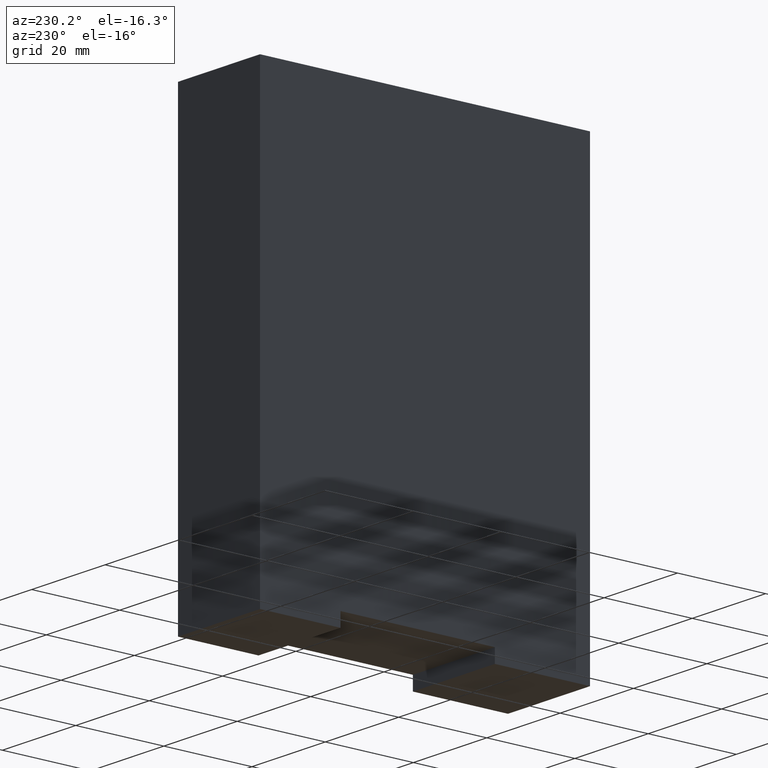
[diagram: clean part render]
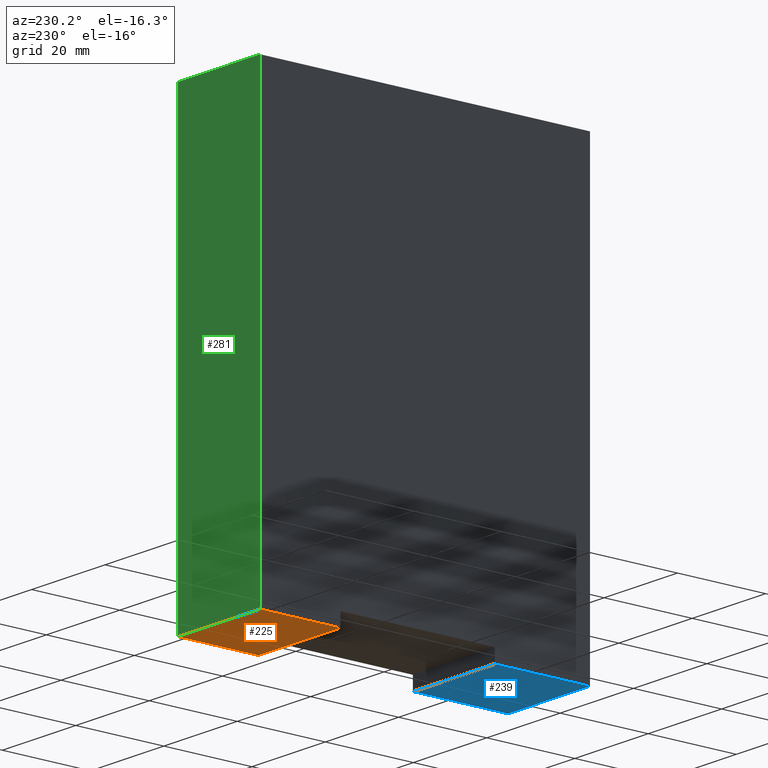
[diagram: same view with three faces highlighted in distinct colors, each labeled with its STEP entity id]
A machine part, auxiliary view with three faces highlighted in distinct colors.
Their STEP definitions:

[orange] entity #225 — the highlighted planar face has unit normal (0, 0, 1).
#42=DIRECTION('',(0.E0,-1.E0,0.E0));
#43=VECTOR('',#42,7.2E-1);
#44=CARTESIAN_POINT('',(-4.4E-1,1.475E0,-3.97E0));
#45=LINE('',#44,#43);
#46=DIRECTION('',(1.E0,0.E0,0.E0));
#47=VECTOR('',#46,8.8E-1);
#48=CARTESIAN_POINT('',(-4.4E-1,7.55E-1,-3.97E0));
#49=LINE('',#48,#47);
#50=DIRECTION('',(0.E0,1.E0,0.E0));
#51=VECTOR('',#50,7.2E-1);
#52=CARTESIAN_POINT('',(4.4E-1,7.55E-1,-3.97E0));
#53=LINE('',#52,#51);
#54=DIRECTION('',(-1.E0,0.E0,0.E0));
#55=VECTOR('',#54,8.8E-1);
#56=CARTESIAN_POINT('',(4.4E-1,1.475E0,-3.97E0));
#57=LINE('',#56,#55);
#110=CARTESIAN_POINT('',(4.4E-1,1.475E0,-3.97E0));
#111=CARTESIAN_POINT('',(-4.4E-1,1.475E0,-3.97E0));
#112=VERTEX_POINT('',#110);
#113=VERTEX_POINT('',#111);
#114=CARTESIAN_POINT('',(-4.4E-1,7.55E-1,-3.97E0));
#116=VERTEX_POINT('',#114);
#126=CARTESIAN_POINT('',(4.4E-1,7.55E-1,-3.97E0));
#127=VERTEX_POINT('',#126);
#212=CARTESIAN_POINT('',(0.E0,0.E0,-3.97E0));
#213=DIRECTION('',(0.E0,0.E0,1.E0));
#214=DIRECTION('',(1.E0,0.E0,0.E0));
#215=AXIS2_PLACEMENT_3D('',#212,#213,#214);
#216=PLANE('',#215);
#217=ORIENTED_EDGE('',*,*,#153,.T.);
#218=ORIENTED_EDGE('',*,*,#179,.T.);
#220=ORIENTED_EDGE('',*,*,#219,.T.);
#222=ORIENTED_EDGE('',*,*,#221,.T.);
#223=EDGE_LOOP('',(#217,#218,#220,#222));
#224=FACE_OUTER_BOUND('',#223,.F.);
#225=ADVANCED_FACE('',(#224),#216,.F.);
#153=EDGE_CURVE('',#113,#116,#45,.T.);
#179=EDGE_CURVE('',#116,#127,#49,.T.);
#219=EDGE_CURVE('',#127,#112,#53,.T.);
#221=EDGE_CURVE('',#112,#113,#57,.T.);

[blue] entity #239 — the highlighted planar face has unit normal (0, 0, 1).
#58=DIRECTION('',(0.E0,-1.E0,0.E0));
#59=VECTOR('',#58,8.5E-1);
#60=CARTESIAN_POINT('',(-4.4E-1,-6.25E-1,-3.97E0));
#61=LINE('',#60,#59);
#62=DIRECTION('',(1.E0,0.E0,0.E0));
#63=VECTOR('',#62,8.8E-1);
#64=CARTESIAN_POINT('',(-4.4E-1,-1.475E0,-3.97E0));
#65=LINE('',#64,#63);
#66=DIRECTION('',(0.E0,1.E0,0.E0));
#67=VECTOR('',#66,8.5E-1);
#68=CARTESIAN_POINT('',(4.4E-1,-1.475E0,-3.97E0));
#69=LINE('',#68,#67);
#70=DIRECTION('',(1.E0,0.E0,0.E0));
#71=VECTOR('',#70,8.8E-1);
#72=CARTESIAN_POINT('',(-4.4E-1,-6.25E-1,-3.97E0));
#73=LINE('',#72,#71);
#106=CARTESIAN_POINT('',(-4.4E-1,-1.475E0,-3.97E0));
#107=CARTESIAN_POINT('',(4.4E-1,-1.475E0,-3.97E0));
#108=VERTEX_POINT('',#106);
#109=VERTEX_POINT('',#107);
#120=CARTESIAN_POINT('',(-4.4E-1,-6.25E-1,-3.97E0));
#121=VERTEX_POINT('',#120);
#128=CARTESIAN_POINT('',(4.4E-1,-6.25E-1,-3.97E0));
#129=VERTEX_POINT('',#128);
#226=CARTESIAN_POINT('',(0.E0,0.E0,-3.97E0));
#227=DIRECTION('',(0.E0,0.E0,1.E0));
#228=DIRECTION('',(1.E0,0.E0,0.E0));
#229=AXIS2_PLACEMENT_3D('',#226,#227,#228);
#230=PLANE('',#229);
#231=ORIENTED_EDGE('',*,*,#160,.T.);
#233=ORIENTED_EDGE('',*,*,#232,.T.);
#235=ORIENTED_EDGE('',*,*,#234,.T.);
#236=ORIENTED_EDGE('',*,*,#204,.F.);
#237=EDGE_LOOP('',(#231,#233,#235,#236));
#238=FACE_OUTER_BOUND('',#237,.F.);
#239=ADVANCED_FACE('',(#238),#230,.F.);
#160=EDGE_CURVE('',#121,#108,#61,.T.);
#204=EDGE_CURVE('',#121,#129,#73,.T.);
#232=EDGE_CURVE('',#108,#109,#65,.T.);
#234=EDGE_CURVE('',#109,#129,#69,.T.);

[green] entity #281 — the highlighted planar face has unit normal (0, 1, 0).
#6=DIRECTION('',(-1.E0,0.E0,0.E0));
#7=VECTOR('',#6,8.8E-1);
#8=CARTESIAN_POINT('',(4.4E-1,1.475E0,0.E0));
#9=LINE('',#8,#7);
#22=DIRECTION('',(0.E0,0.E0,-1.E0));
#23=VECTOR('',#22,3.97E0);
#24=CARTESIAN_POINT('',(-4.4E-1,1.475E0,0.E0));
#25=LINE('',#24,#23);
#54=DIRECTION('',(-1.E0,0.E0,0.E0));
#55=VECTOR('',#54,8.8E-1);
#56=CARTESIAN_POINT('',(4.4E-1,1.475E0,-3.97E0));
#57=LINE('',#56,#55);
#94=DIRECTION('',(0.E0,0.E0,-1.E0));
#95=VECTOR('',#94,3.97E0);
#96=CARTESIAN_POINT('',(4.4E-1,1.475E0,0.E0));
#97=LINE('',#96,#95);
#98=CARTESIAN_POINT('',(-4.4E-1,1.475E0,0.E0));
#100=VERTEX_POINT('',#98);
#104=CARTESIAN_POINT('',(4.4E-1,1.475E0,0.E0));
#105=VERTEX_POINT('',#104);
#110=CARTESIAN_POINT('',(4.4E-1,1.475E0,-3.97E0));
#111=CARTESIAN_POINT('',(-4.4E-1,1.475E0,-3.97E0));
#112=VERTEX_POINT('',#110);
#113=VERTEX_POINT('',#111);
#270=CARTESIAN_POINT('',(4.4E-1,1.475E0,0.E0));
#271=DIRECTION('',(0.E0,1.E0,0.E0));
#272=DIRECTION('',(-1.E0,0.E0,0.E0));
#273=AXIS2_PLACEMENT_3D('',#270,#271,#272);
#274=PLANE('',#273);
#275=ORIENTED_EDGE('',*,*,#137,.T.);
#276=ORIENTED_EDGE('',*,*,#155,.T.);
#277=ORIENTED_EDGE('',*,*,#221,.F.);
#278=ORIENTED_EDGE('',*,*,#252,.F.);
#279=EDGE_LOOP('',(#275,#276,#277,#278));
#280=FACE_OUTER_BOUND('',#279,.F.);
#281=ADVANCED_FACE('',(#280),#274,.T.);
#137=EDGE_CURVE('',#105,#100,#9,.T.);
#155=EDGE_CURVE('',#100,#113,#25,.T.);
#221=EDGE_CURVE('',#112,#113,#57,.T.);
#252=EDGE_CURVE('',#105,#112,#97,.T.);